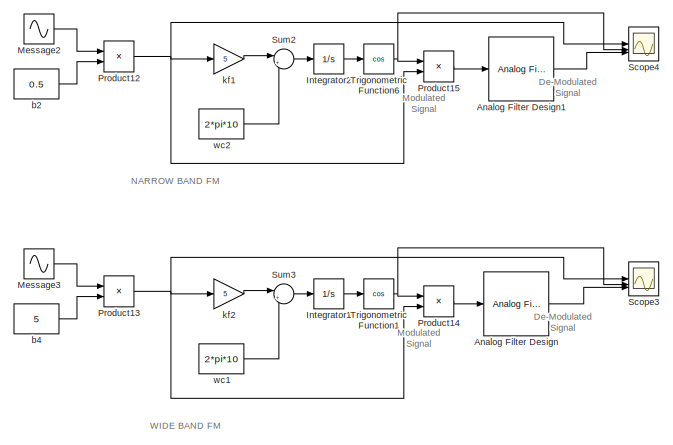
[diagram: root canvas - part 1/3, top right region]
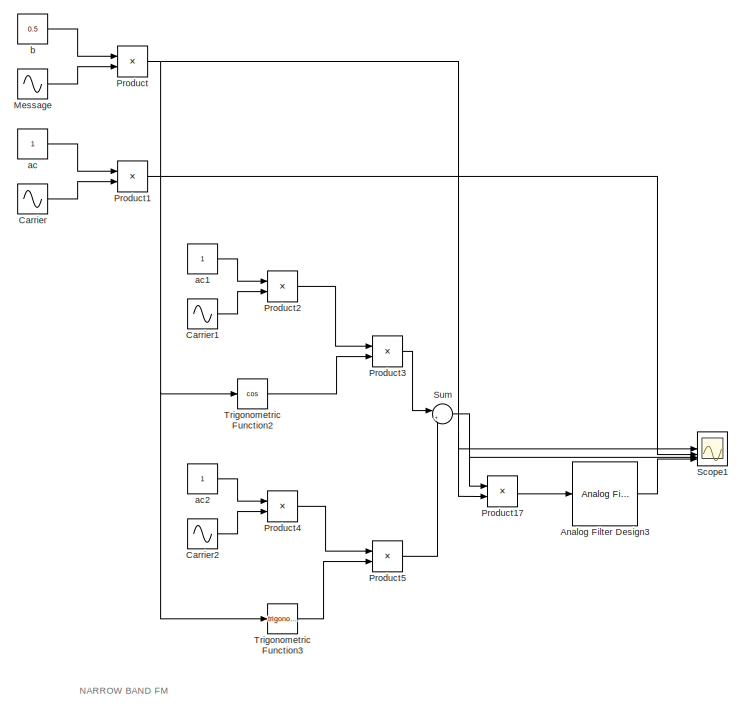
[diagram: root canvas - part 2/3, left side, full height]
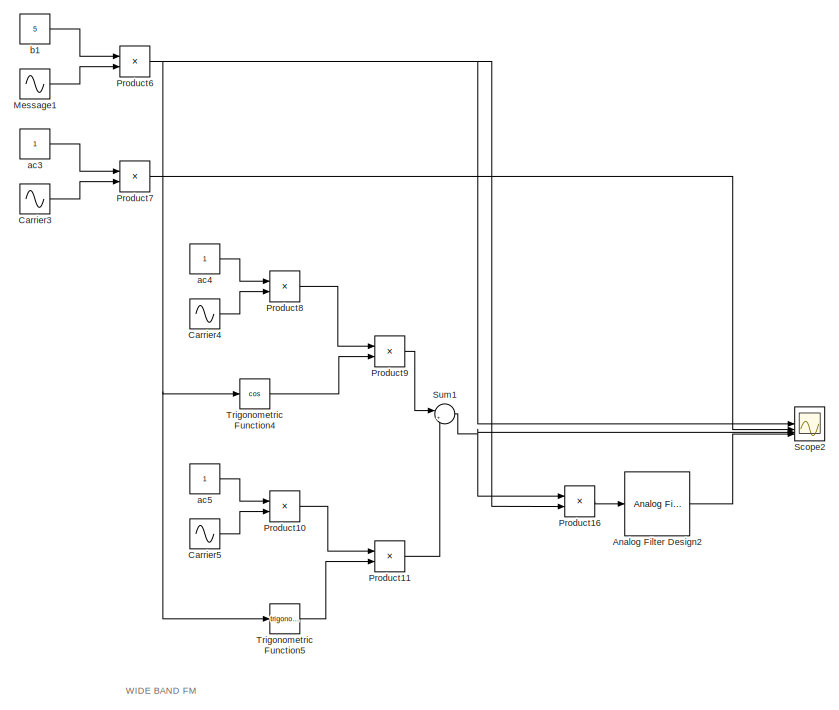
[diagram: root canvas - part 3/3, center side, full height]
MODEL slx_960a923eb91e
KIND model
CONFIG AbsTol = auto
CONFIG EnableMultiTasking = off
CONFIG FixedStep = auto
CONFIG MaxStep = auto
CONFIG MinStep = auto
CONFIG RelTol = 1e-3
CONFIG SampleTimeConstraint = Unconstrained
CONFIG SolverName = VariableStepAuto
CONFIG StartTime = 0.0
CONFIG StopTime = 10.0
BLOCK [Reference] Analog Filter Design  REF=dspfdesign/Analog
Filter Design
  SourceBlock = dspfdesign/Analog\nFilter Design
  SourceType = Analog Filter Design
BLOCK [Reference] Analog Filter Design1  REF=dspfdesign/Analog
Filter Design
  SourceBlock = dspfdesign/Analog\nFilter Design
  SourceType = Analog Filter Design
BLOCK [Reference] Analog Filter Design2  REF=dspfdesign/Analog
Filter Design
  SourceBlock = dspfdesign/Analog\nFilter Design
  SourceType = Analog Filter Design
BLOCK [Reference] Analog Filter Design3  REF=dspfdesign/Analog
Filter Design
  SourceBlock = dspfdesign/Analog\nFilter Design
  SourceType = Analog Filter Design
BLOCK [Sin] Carrier
  Frequency = 2*pi*10
  Phase = pi/2
  SampleTime = 1/1000
BLOCK [Sin] Carrier1
  Frequency = 2*pi*10
  Phase = pi/2
  SampleTime = 1/1000
BLOCK [Sin] Carrier2
  Frequency = 2*pi*10
  SampleTime = 1/1000
BLOCK [Sin] Carrier3
  Frequency = 2*pi*10
  Phase = pi/2
  SampleTime = 1/1000
BLOCK [Sin] Carrier4
  Frequency = 2*pi*10
  Phase = pi/2
  SampleTime = 1/1000
BLOCK [Sin] Carrier5
  Frequency = 2*pi*10
  SampleTime = 1/1000
BLOCK [Integrator] Integrator1
BLOCK [Integrator] Integrator2
BLOCK [Sin] Message
  Frequency = 2*pi*1
  SampleTime = 1/1000
BLOCK [Sin] Message1
  Frequency = 2*pi*1
  SampleTime = 1/1000
BLOCK [Sin] Message2
  Frequency = 2*pi*1
  SampleTime = 1/1000
BLOCK [Sin] Message3
  Frequency = 2*pi*1
  SampleTime = 1/1000
BLOCK [Product] Product
BLOCK [Product] Product1
BLOCK [Product] Product10
BLOCK [Product] Product11
BLOCK [Product] Product12
BLOCK [Product] Product13
BLOCK [Product] Product14
BLOCK [Product] Product15
BLOCK [Product] Product16
BLOCK [Product] Product17
BLOCK [Product] Product2
BLOCK [Product] Product3
BLOCK [Product] Product4
BLOCK [Product] Product5
BLOCK [Product] Product6
BLOCK [Product] Product7
BLOCK [Product] Product8
BLOCK [Product] Product9
BLOCK [Scope] Scope1
  Floating = off
  NumInputPorts = 4
  ScopeSpecificationString = Simulink.scopes.TimeScopeBlockCfg('CurrentConfiguration', extmgr.ConfigurationSet(extmgr.Configuration('Core','General UI',true,'FigureColor',[1 1 1]),extmgr.Configuration('Core','Source UI',true),extmgr.Configuration('Sources','WiredSimulink',true),extmgr.Configuration('Visuals','Time Domain',true,'SerializedDisplays',{struct('MinYLimReal','-0.625','MaxYLimReal','0.625','YLabelReal','','MinYLimMa...<+3979ch>
BLOCK [Scope] Scope2
  Floating = off
  NumInputPorts = 4
  ScopeSpecificationString = Simulink.scopes.TimeScopeBlockCfg('CurrentConfiguration', extmgr.ConfigurationSet(extmgr.Configuration('Core','General UI',true,'FigureColor',[1 1 1]),extmgr.Configuration('Core','Source UI',true),extmgr.Configuration('Sources','WiredSimulink',true,'DataLoggingVariableName','ScopeData3'),extmgr.Configuration('Visuals','Time Domain',true,'SerializedDisplays',{struct('MinYLimReal','-6.25','MaxYLimRe...<+4013ch>
BLOCK [Scope] Scope3
  Floating = off
  NumInputPorts = 3
  ScopeSpecificationString = Simulink.scopes.TimeScopeBlockCfg('CurrentConfiguration', extmgr.ConfigurationSet(extmgr.Configuration('Core','General UI',true,'FigureColor',[1 1 1]),extmgr.Configuration('Core','Source UI',true),extmgr.Configuration('Sources','WiredSimulink',true,'DataLoggingVariableName','ScopeData2'),extmgr.Configuration('Visuals','Time Domain',true,'SerializedDisplays',{struct('MinYLimReal','-6.25','MaxYLimRe...<+3149ch>
BLOCK [Scope] Scope4
  Floating = off
  NumInputPorts = 3
  ScopeSpecificationString = Simulink.scopes.TimeScopeBlockCfg('CurrentConfiguration', extmgr.ConfigurationSet(extmgr.Configuration('Core','General UI',true,'FigureColor',[1 1 1]),extmgr.Configuration('Core','Source UI',true),extmgr.Configuration('Sources','WiredSimulink',true,'DataLoggingVariableName','ScopeData1'),extmgr.Configuration('Visuals','Time Domain',true,'SerializedDisplays',{struct('MinYLimReal','-0.625','MaxYLimR...<+3149ch>
BLOCK [Sum] Sum
  Inputs = |+-
BLOCK [Sum] Sum1
  Inputs = |+-
BLOCK [Sum] Sum2
  Inputs = |++
BLOCK [Sum] Sum3
  Inputs = |++
BLOCK [Trigonometry] Trigonometric Function1
  Operator = cos
BLOCK [Trigonometry] Trigonometric Function2
  Operator = cos
BLOCK [Trigonometry] Trigonometric Function3
BLOCK [Trigonometry] Trigonometric Function4
  Operator = cos
BLOCK [Trigonometry] Trigonometric Function5
BLOCK [Trigonometry] Trigonometric Function6
  Operator = cos
BLOCK [Constant] ac
BLOCK [Constant] ac1
BLOCK [Constant] ac2
BLOCK [Constant] ac3
BLOCK [Constant] ac4
BLOCK [Constant] ac5
BLOCK [Constant] b
  Value = 0.5
BLOCK [Constant] b1
  Value = 5
BLOCK [Constant] b2
  Value = 0.5
BLOCK [Constant] b4
  Value = 5
BLOCK [Gain] kf1
  Gain = 5
BLOCK [Gain] kf2
  Gain = 5
BLOCK [Constant] wc1
  Value = 2*pi*10
BLOCK [Constant] wc2
  Value = 2*pi*10
ANNOTATION (root): NARROW BAND FM
ANNOTATION (root): WIDE BAND FM
ANNOTATION (root): De-Modulated Signal
ANNOTATION (root): Modulated Signal
LINE Analog Filter Design1:1 -> Scope4:3
LINE Analog Filter Design2:1 -> Scope2:4
LINE Analog Filter Design3:1 -> Scope1:4
LINE Analog Filter Design:1 -> Scope3:3
LINE Carrier1:1 -> Product2:2
LINE Carrier2:1 -> Product4:2
LINE Carrier3:1 -> Product7:2
LINE Carrier4:1 -> Product8:2
LINE Carrier5:1 -> Product10:2
LINE Carrier:1 -> Product1:2
LINE Integrator1:1 -> Trigonometric Function1:1
LINE Integrator2:1 -> Trigonometric Function6:1
LINE Message1:1 -> Product6:2
LINE Message2:1 -> Product12:1
LINE Message3:1 -> Product13:1
LINE Message:1 -> Product:2
LINE Product10:1 -> Product11:1
LINE Product11:1 -> Sum1:2
NET Product12:1 -> Product15:2, Scope4:1, kf1:1
NET Product13:1 -> Product14:2, Scope3:1, kf2:1
LINE Product14:1 -> Analog Filter Design:1
LINE Product15:1 -> Analog Filter Design1:1
LINE Product16:1 -> Analog Filter Design2:1
LINE Product17:1 -> Analog Filter Design3:1
LINE Product1:1 -> Scope1:2
LINE Product2:1 -> Product3:1
LINE Product3:1 -> Sum:1
LINE Product4:1 -> Product5:1
LINE Product5:1 -> Sum:2
NET Product6:1 -> Product16:2, Scope2:1, Trigonometric Function4:1, Trigonometric Function5:1
LINE Product7:1 -> Scope2:2
LINE Product8:1 -> Product9:1
LINE Product9:1 -> Sum1:1
NET Product:1 -> Product17:2, Scope1:1, Trigonometric Function2:1, Trigonometric Function3:1
NET Sum1:1 -> Product16:1, Scope2:3
LINE Sum2:1 -> Integrator2:1
LINE Sum3:1 -> Integrator1:1
NET Sum:1 -> Product17:1, Scope1:3
NET Trigonometric Function1:1 -> Product14:1, Scope3:2
LINE Trigonometric Function2:1 -> Product3:2
LINE Trigonometric Function3:1 -> Product5:2
LINE Trigonometric Function4:1 -> Product9:2
LINE Trigonometric Function5:1 -> Product11:2
NET Trigonometric Function6:1 -> Product15:1, Scope4:2
LINE ac1:1 -> Product2:1
LINE ac2:1 -> Product4:1
LINE ac3:1 -> Product7:1
LINE ac4:1 -> Product8:1
LINE ac5:1 -> Product10:1
LINE ac:1 -> Product1:1
LINE b1:1 -> Product6:1
LINE b2:1 -> Product12:2
LINE b4:1 -> Product13:2
LINE b:1 -> Product:1
LINE kf1:1 -> Sum2:1
LINE kf2:1 -> Sum3:1
LINE wc1:1 -> Sum3:2
LINE wc2:1 -> Sum2:2
note: NET lines group one-source signal fan-out (src -> all destinations, sorted); 1:1 wires keep LINE
